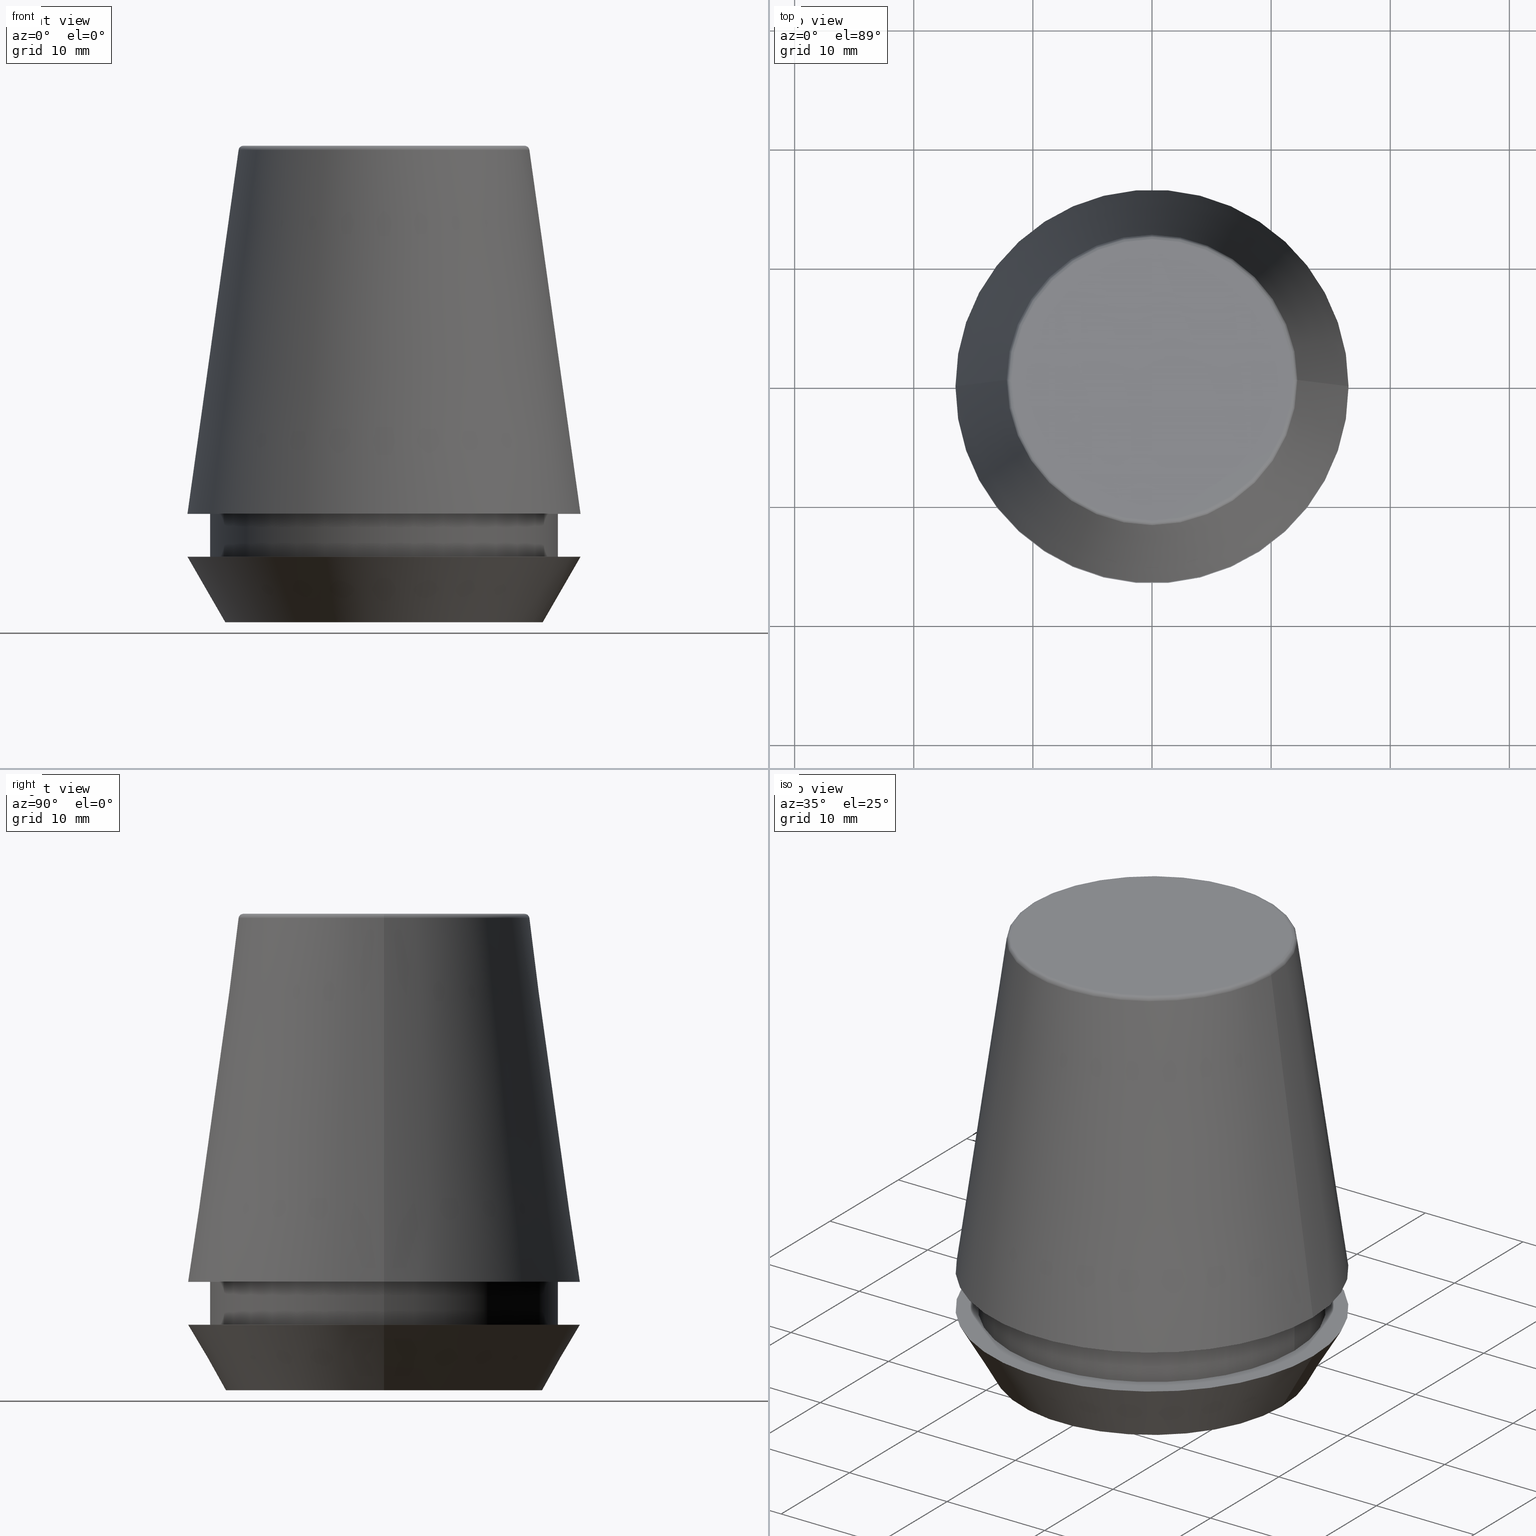
[diagram: canonical four-view strip — front | top / right | iso, engineering-drawing reading convention]
A machine part, canonical four-view strip (front | top / right | iso — engineering-drawing reading convention). The complete STEP part file that produces these views, byte-faithful:
ISO-10303-21;
HEADER;
FILE_DESCRIPTION (( 'STEP AP203' ),
    '1' );
FILE_NAME ('TAP COLLET ER 32G  8.0 X 6.3.STEP',
    '2019-04-09T11:06:26',
    ( '' ),
    ( '' ),
    'SwSTEP 2.0',
    'SolidWorks 2014',
    '' );
FILE_SCHEMA (( 'CONFIG_CONTROL_DESIGN' ));
ENDSEC;

DATA;
#1 = EDGE_CURVE ( 'NONE', #123, #70, #239, .T. ) ;
#2 = VERTEX_POINT ( 'NONE', #189 ) ;
#3 = AXIS2_PLACEMENT_3D ( 'NONE', #117, #236, #336 ) ;
#4 = DIRECTION ( 'NONE',  ( 0.0000000000000000000, -0.0000000000000000000, 1.000000000000000000 ) ) ;
#5 = AXIS2_PLACEMENT_3D ( 'NONE', #28, #350, #193 ) ;
#6 = ORIENTED_EDGE ( 'NONE', *, *, #182, .T. ) ;
#7 = APPROVAL_ROLE ( '' ) ;
#8 = CIRCLE ( 'NONE', #277, 16.50032537154048700 ) ;
#9 = ORIENTED_EDGE ( 'NONE', *, *, #169, .T. ) ;
#10 = APPROVAL_DATE_TIME ( #208, #370 ) ;
#11 = ORIENTED_EDGE ( 'NONE', *, *, #141, .T. ) ;
#12 = CARTESIAN_POINT ( 'NONE',  ( 13.32457351945710200, 0.0000000000000000000, 0.0000000000000000000 ) ) ;
#13 = ORIENTED_EDGE ( 'NONE', *, *, #24, .T. ) ;
#14 = PRODUCT_DEFINITION ( 'UNKNOWN', '', #97, #343 ) ;
#15 = TOROIDAL_SURFACE ( 'NONE', #104, 11.80989888411031400, 0.4000000000000026900 ) ;
#16 = MECHANICAL_CONTEXT ( 'NONE', #174, 'mechanical' ) ;
#17 = PERSON_AND_ORGANIZATION_ROLE ( 'creator' ) ;
#18 = AXIS2_PLACEMENT_3D ( 'NONE', #99, #285, #249 ) ;
#19 = ADVANCED_FACE ( 'NONE', ( #296, #103 ), #48, .F. ) ;
#20 = VERTEX_POINT ( 'NONE', #53 ) ;
#21 = EDGE_CURVE ( 'NONE', #70, #123, #358, .T. ) ;
#22 = DIRECTION ( 'NONE',  ( -0.0000000000000000000, -0.0000000000000000000, 1.000000000000000000 ) ) ;
#23 = APPLICATION_PROTOCOL_DEFINITION ( 'international standard', 'config_control_design', 1994, #174 ) ;
#24 = EDGE_CURVE ( 'NONE', #338, #244, #8, .T. ) ;
#25 = ORIENTED_EDGE ( 'NONE', *, *, #304, .T. ) ;
#26 = ORIENTED_EDGE ( 'NONE', *, *, #129, .T. ) ;
#27 = ORIENTED_EDGE ( 'NONE', *, *, #148, .T. ) ;
#28 = CARTESIAN_POINT ( 'NONE',  ( 0.0000000000000000000, 0.0000000000000000000, 0.0000000000000000000 ) ) ;
#29 = CC_DESIGN_PERSON_AND_ORGANIZATION_ASSIGNMENT ( #324, #341, ( #82 ) ) ;
#30 = DATE_AND_TIME ( #252, #73 ) ;
#31 = EDGE_CURVE ( 'NONE', #331, #323, #139, .T. ) ;
#32 = CARTESIAN_POINT ( 'NONE',  ( -12.20600611160694300, 0.0000000000000000000, 39.65566924038402900 ) ) ;
#33 = DIRECTION ( 'NONE',  ( 1.000000000000000000, 0.0000000000000000000, 0.0000000000000000000 ) ) ;
#34 = EDGE_LOOP ( 'NONE', ( #159, #85, #238, #11 ) ) ;
#35 = CARTESIAN_POINT ( 'NONE',  ( -16.50032537154048700, 0.0000000000000000000, 9.099999999999997900 ) ) ;
#36 = CARTESIAN_POINT ( 'NONE',  ( 0.0000000000000000000, 0.0000000000000000000, 40.00000000000000700 ) ) ;
#37 = AXIS2_PLACEMENT_3D ( 'NONE', #284, #300, #114 ) ;
#38 = LOCAL_TIME ( 16, 36, 26.00000000000000000, #207 ) ;
#39 = CARTESIAN_POINT ( 'NONE',  ( 0.0000000000000000000, 0.0000000000000000000, 0.0000000000000000000 ) ) ;
#40 = VECTOR ( 'NONE', #87, 1000.000000000000000 ) ;
#41 = SECURITY_CLASSIFICATION_LEVEL ( 'unclassified' ) ;
#42 = DIRECTION ( 'NONE',  ( -0.0000000000000000000, -0.0000000000000000000, 1.000000000000000000 ) ) ;
#43 = TOROIDAL_SURFACE ( 'NONE', #321, 11.80989888411031400, 0.4000000000000026900 ) ;
#44 =( GEOMETRIC_REPRESENTATION_CONTEXT ( 3 ) GLOBAL_UNCERTAINTY_ASSIGNED_CONTEXT ( ( #275 ) ) GLOBAL_UNIT_ASSIGNED_CONTEXT ( ( #81, #245, #330 ) ) REPRESENTATION_CONTEXT ( 'NONE', 'WORKASPACE' ) );
#45 = ORGANIZATION ( 'UNSPECIFIED', 'UNSPECIFIED', '' ) ;
#46 = EDGE_CURVE ( 'NONE', #2, #106, #253, .T. ) ;
#47 = EDGE_LOOP ( 'NONE', ( #72, #372, #143, #78 ) ) ;
#48 = PLANE ( 'NONE',  #298 ) ;
#49 = FACE_OUTER_BOUND ( 'NONE', #34, .T. ) ;
#50 = CARTESIAN_POINT ( 'NONE',  ( 0.0000000000000000000, 0.0000000000000000000, 101.8074564848000400 ) ) ;
#51 = PLANE ( 'NONE',  #348 ) ;
#52 = DIRECTION ( 'NONE',  ( 0.1391731009600586900, 1.704378926181473100E-017, -0.9902680687415712500 ) ) ;
#53 = CARTESIAN_POINT ( 'NONE',  ( 11.80989888411031400, 0.0000000000000000000, 40.00000000000000700 ) ) ;
#54 = CARTESIAN_POINT ( 'NONE',  ( -11.80989888411031400, 1.446295486667959300E-015, 39.60000000000000100 ) ) ;
#55 = AXIS2_PLACEMENT_3D ( 'NONE', #39, #201, #121 ) ;
#56 = DIRECTION ( 'NONE',  ( -0.0000000000000000000, -0.0000000000000000000, 1.000000000000000000 ) ) ;
#57 = FACE_OUTER_BOUND ( 'NONE', #187, .T. ) ;
#58 = DIRECTION ( 'NONE',  ( 1.000000000000000000, 0.0000000000000000000, 0.0000000000000000000 ) ) ;
#59 = PERSON_AND_ORGANIZATION ( #352, #45 ) ;
#60 = CARTESIAN_POINT ( 'NONE',  ( 0.0000000000000000000, 0.0000000000000000000, 9.099999999999997900 ) ) ;
#61 = DIRECTION ( 'NONE',  ( 1.000000000000000000, 0.0000000000000000000, 0.0000000000000000000 ) ) ;
#62 = AXIS2_PLACEMENT_3D ( 'NONE', #36, #173, #61 ) ;
#63 = ORIENTED_EDGE ( 'NONE', *, *, #202, .T. ) ;
#64 = ORIENTED_EDGE ( 'NONE', *, *, #31, .T. ) ;
#65 = SHAPE_DEFINITION_REPRESENTATION ( #156, #93 ) ;
#66 = DATE_TIME_ROLE ( 'classification_date' ) ;
#67 = AXIS2_PLACEMENT_3D ( 'NONE', #163, #110, #342 ) ;
#68 = LINE ( 'NONE', #232, #76 ) ;
#69 = PERSON_AND_ORGANIZATION ( #352, #45 ) ;
#70 = VERTEX_POINT ( 'NONE', #365 ) ;
#71 = AXIS2_PLACEMENT_3D ( 'NONE', #180, #42, #171 ) ;
#72 = ORIENTED_EDGE ( 'NONE', *, *, #133, .T. ) ;
#73 = LOCAL_TIME ( 16, 36, 26.00000000000000000, #367 ) ;
#74 = LINE ( 'NONE', #134, #40 ) ;
#75 = CARTESIAN_POINT ( 'NONE',  ( -11.80989888411031400, 1.470550059081603400E-015, 40.00000000000000700 ) ) ;
#76 = VECTOR ( 'NONE', #52, 1000.000000000000000 ) ;
#77 = CARTESIAN_POINT ( 'NONE',  ( 14.60000000000000000, 0.0000000000000000000, 9.099999999999997900 ) ) ;
#78 = ORIENTED_EDGE ( 'NONE', *, *, #363, .F. ) ;
#79 = EDGE_CURVE ( 'NONE', #323, #244, #74, .T. ) ;
#80 = DIRECTION ( 'NONE',  ( -0.0000000000000000000, -0.0000000000000000000, 1.000000000000000000 ) ) ;
#81 =( LENGTH_UNIT ( ) NAMED_UNIT ( * ) SI_UNIT ( .MILLI., .METRE. ) );
#82 = PRODUCT ( 'TAP COLLET ER 32G  8.0 X 6.3', 'TAP COLLET ER 32G  8.0 X 6.3', '', ( #16 ) ) ;
#83 = CIRCLE ( 'NONE', #5, 13.32457351945710200 ) ;
#84 = PLANE ( 'NONE',  #37 ) ;
#85 = ORIENTED_EDGE ( 'NONE', *, *, #182, .F. ) ;
#86 = EDGE_LOOP ( 'NONE', ( #283, #25, #339, #384 ) ) ;
#87 = DIRECTION ( 'NONE',  ( -0.1391731009600586900, 0.0000000000000000000, -0.9902680687415712500 ) ) ;
#88 = ADVANCED_FACE ( 'NONE', ( #262 ), #84, .F. ) ;
#89 = CARTESIAN_POINT ( 'NONE',  ( 0.0000000000000000000, 0.0000000000000000000, 0.0000000000000000000 ) ) ;
#90 = DIRECTION ( 'NONE',  ( 0.4999999999999947300, 0.0000000000000000000, 0.8660254037844418200 ) ) ;
#91 = ORIENTED_EDGE ( 'NONE', *, *, #1, .T. ) ;
#92 = CARTESIAN_POINT ( 'NONE',  ( 13.32457351945710200, 0.0000000000000000000, 0.0000000000000000000 ) ) ;
#93 = ADVANCED_BREP_SHAPE_REPRESENTATION ( 'TAP COLLET ER 32G  8.0 X 6.3', ( #183, #55 ), #44 ) ;
#94 = APPROVAL_STATUS ( 'not_yet_approved' ) ;
#95 = LINE ( 'NONE', #144, #378 ) ;
#96 = ORIENTED_EDGE ( 'NONE', *, *, #165, .F. ) ;
#97 = PRODUCT_DEFINITION_FORMATION_WITH_SPECIFIED_SOURCE ( 'ANY', '', #82, .NOT_KNOWN. ) ;
#98 = ORIENTED_EDGE ( 'NONE', *, *, #46, .T. ) ;
#99 = CARTESIAN_POINT ( 'NONE',  ( 0.0000000000000000000, 0.0000000000000000000, 5.500000000000005300 ) ) ;
#100 = LINE ( 'NONE', #364, #212 ) ;
#101 = CC_DESIGN_DATE_AND_TIME_ASSIGNMENT ( #318, #122, ( #14 ) ) ;
#102 = FACE_OUTER_BOUND ( 'NONE', #328, .T. ) ;
#103 = FACE_OUTER_BOUND ( 'NONE', #179, .T. ) ;
#104 = AXIS2_PLACEMENT_3D ( 'NONE', #237, #196, #273 ) ;
#105 = DIRECTION ( 'NONE',  ( -0.0000000000000000000, -0.0000000000000000000, 1.000000000000000000 ) ) ;
#106 = VERTEX_POINT ( 'NONE', #385 ) ;
#107 = AXIS2_PLACEMENT_3D ( 'NONE', #60, #149, #172 ) ;
#108 = DIRECTION ( 'NONE',  ( -0.0000000000000000000, -0.0000000000000000000, 1.000000000000000000 ) ) ;
#109 = DIRECTION ( 'NONE',  ( -0.0000000000000000000, -0.0000000000000000000, 1.000000000000000000 ) ) ;
#110 = DIRECTION ( 'NONE',  ( -0.0000000000000000000, -0.0000000000000000000, 1.000000000000000000 ) ) ;
#111 = AXIS2_PLACEMENT_3D ( 'NONE', #50, #109, #235 ) ;
#112 = CARTESIAN_POINT ( 'NONE',  ( 0.0000000000000000000, 0.0000000000000000000, 5.500000000000005300 ) ) ;
#113 = AXIS2_PLACEMENT_3D ( 'NONE', #292, #227, #188 ) ;
#114 = DIRECTION ( 'NONE',  ( -1.000000000000000000, 0.0000000000000000000, -0.0000000000000000000 ) ) ;
#115 = DIRECTION ( 'NONE',  ( 0.0000000000000000000, -0.0000000000000000000, 1.000000000000000000 ) ) ;
#116 = DIRECTION ( 'NONE',  ( -0.4999999999999947300, 6.123233995736700700E-017, 0.8660254037844418200 ) ) ;
#117 = CARTESIAN_POINT ( 'NONE',  ( 0.0000000000000000000, 0.0000000000000000000, 9.099999999999997900 ) ) ;
#118 = DATE_AND_TIME ( #289, #38 ) ;
#119 = LINE ( 'NONE', #199, #319 ) ;
#120 = AXIS2_PLACEMENT_3D ( 'NONE', #54, #200, #376 ) ;
#121 = DIRECTION ( 'NONE',  ( 1.000000000000000000, 0.0000000000000000000, 0.0000000000000000000 ) ) ;
#122 = DATE_TIME_ROLE ( 'creation_date' ) ;
#123 = VERTEX_POINT ( 'NONE', #335 ) ;
#124 = EDGE_CURVE ( 'NONE', #223, #288, #138, .T. ) ;
#125 = APPLICATION_PROTOCOL_DEFINITION ( 'international standard', 'config_control_design', 1994, #310 ) ;
#126 = DIRECTION ( 'NONE',  ( 1.000000000000000000, 0.0000000000000000000, 0.0000000000000000000 ) ) ;
#127 = PERSON_AND_ORGANIZATION ( #352, #45 ) ;
#128 = DIRECTION ( 'NONE',  ( -0.0000000000000000000, -0.0000000000000000000, 1.000000000000000000 ) ) ;
#129 = EDGE_CURVE ( 'NONE', #106, #2, #222, .T. ) ;
#130 = APPROVAL_PERSON_ORGANIZATION ( #306, #250, #152 ) ;
#131 = APPROVAL_DATE_TIME ( #30, #255 ) ;
#132 = CIRCLE ( 'NONE', #71, 11.80989888411031400 ) ;
#133 = EDGE_CURVE ( 'NONE', #379, #303, #214, .T. ) ;
#134 = CARTESIAN_POINT ( 'NONE',  ( -16.50032537154048700, 0.0000000000000000000, 9.099999999999997900 ) ) ;
#135 = EDGE_LOOP ( 'NONE', ( #145, #27, #13, #217 ) ) ;
#136 = PRODUCT_RELATED_PRODUCT_CATEGORY ( 'detail', '', ( #82 ) ) ;
#137 = CYLINDRICAL_SURFACE ( 'NONE', #111, 14.60000000000000000 ) ;
#138 = CIRCLE ( 'NONE', #243, 14.60000000000000000 ) ;
#139 = CIRCLE ( 'NONE', #251, 12.20600611160694300 ) ;
#140 = DIRECTION ( 'NONE',  ( -1.000000000000000000, 0.0000000000000000000, -0.0000000000000000000 ) ) ;
#141 = EDGE_CURVE ( 'NONE', #244, #338, #230, .T. ) ;
#142 = CARTESIAN_POINT ( 'NONE',  ( 0.0000000000000000000, 0.0000000000000000000, 39.65566924038402900 ) ) ;
#143 = ORIENTED_EDGE ( 'NONE', *, *, #46, .F. ) ;
#144 = CARTESIAN_POINT ( 'NONE',  ( -13.32457351945710200, 1.631789631060672300E-015, 0.0000000000000000000 ) ) ;
#145 = ORIENTED_EDGE ( 'NONE', *, *, #31, .F. ) ;
#146 = CARTESIAN_POINT ( 'NONE',  ( 0.0000000000000000000, 0.0000000000000000000, 5.500000000000005300 ) ) ;
#147 = CARTESIAN_POINT ( 'NONE',  ( 11.80989888411031400, 0.0000000000000000000, 39.60000000000000100 ) ) ;
#148 = EDGE_CURVE ( 'NONE', #331, #338, #68, .T. ) ;
#149 = DIRECTION ( 'NONE',  ( 0.0000000000000000000, 0.0000000000000000000, -1.000000000000000000 ) ) ;
#150 = LOCAL_TIME ( 16, 36, 26.00000000000000000, #231 ) ;
#151 = ORIENTED_EDGE ( 'NONE', *, *, #124, .T. ) ;
#152 = APPROVAL_ROLE ( '' ) ;
#153 = CIRCLE ( 'NONE', #186, 0.4000000000000045200 ) ;
#154 = ORIENTED_EDGE ( 'NONE', *, *, #158, .T. ) ;
#155 = ORIENTED_EDGE ( 'NONE', *, *, #133, .F. ) ;
#156 = PRODUCT_DEFINITION_SHAPE ( 'NONE', 'NONE',  #14 ) ;
#157 = FACE_OUTER_BOUND ( 'NONE', #162, .T. ) ;
#158 = EDGE_CURVE ( 'NONE', #70, #288, #119, .T. ) ;
#159 = ORIENTED_EDGE ( 'NONE', *, *, #148, .F. ) ;
#160 = ORIENTED_EDGE ( 'NONE', *, *, #129, .F. ) ;
#161 = CARTESIAN_POINT ( 'NONE',  ( 0.0000000000000000000, 16.50032537154048700, 9.099999999999999600 ) ) ;
#162 = EDGE_LOOP ( 'NONE', ( #203, #91, #154, #290 ) ) ;
#163 = CARTESIAN_POINT ( 'NONE',  ( 0.0000000000000000000, 0.0000000000000000000, 9.099999999999997900 ) ) ;
#164 = AXIS2_PLACEMENT_3D ( 'NONE', #267, #166, #302 ) ;
#165 = EDGE_CURVE ( 'NONE', #20, #225, #132, .T. ) ;
#166 = DIRECTION ( 'NONE',  ( -0.0000000000000000000, -0.0000000000000000000, 1.000000000000000000 ) ) ;
#167 = ADVANCED_FACE ( 'NONE', ( #355 ), #312, .T. ) ;
#168 = CARTESIAN_POINT ( 'NONE',  ( 0.0000000000000000000, 0.0000000000000000000, 39.60000000000000100 ) ) ;
#169 = EDGE_CURVE ( 'NONE', #331, #20, #153, .T. ) ;
#170 = CALENDAR_DATE ( 2019, 9, 4 ) ;
#171 = DIRECTION ( 'NONE',  ( 1.000000000000000000, 0.0000000000000000000, 0.0000000000000000000 ) ) ;
#172 = DIRECTION ( 'NONE',  ( -1.000000000000000000, 0.0000000000000000000, 0.0000000000000000000 ) ) ;
#173 = DIRECTION ( 'NONE',  ( -0.0000000000000000000, -0.0000000000000000000, 1.000000000000000000 ) ) ;
#174 = APPLICATION_CONTEXT ( 'configuration controlled 3d designs of mechanical parts and assemblies' ) ;
#175 = PERSON_AND_ORGANIZATION_ROLE ( 'design_supplier' ) ;
#176 = CLOSED_SHELL ( 'NONE', ( #325, #167, #386, #347, #88, #320, #219, #19, #281, #264, #315, #349 ) ) ;
#177 = EDGE_CURVE ( 'NONE', #303, #106, #95, .T. ) ;
#178 = LOCAL_TIME ( 16, 36, 26.00000000000000000, #329 ) ;
#179 = EDGE_LOOP ( 'NONE', ( #98, #26 ) ) ;
#180 = CARTESIAN_POINT ( 'NONE',  ( 0.0000000000000000000, 0.0000000000000000000, 40.00000000000000700 ) ) ;
#181 = DIRECTION ( 'NONE',  ( 1.000000000000000000, 0.0000000000000000000, 0.0000000000000000000 ) ) ;
#182 = EDGE_CURVE ( 'NONE', #323, #331, #366, .T. ) ;
#183 = MANIFOLD_SOLID_BREP ( 'Revolve1', #176 ) ;
#184 = AXIS2_PLACEMENT_3D ( 'NONE', #354, #218, #224 ) ;
#185 = VECTOR ( 'NONE', #90, 999.9999999999998900 ) ;
#186 = AXIS2_PLACEMENT_3D ( 'NONE', #147, #270, #369 ) ;
#187 = EDGE_LOOP ( 'NONE', ( #64, #260, #96, #216 ) ) ;
#188 = DIRECTION ( 'NONE',  ( -1.000000000000000000, 0.0000000000000000000, 0.0000000000000000000 ) ) ;
#189 = CARTESIAN_POINT ( 'NONE',  ( 16.50000000000000000, 0.0000000000000000000, 5.500000000000005300 ) ) ;
#190 = ORIENTED_EDGE ( 'NONE', *, *, #21, .F. ) ;
#191 = DIRECTION ( 'NONE',  ( -0.0000000000000000000, -0.0000000000000000000, 1.000000000000000000 ) ) ;
#192 = DIRECTION ( 'NONE',  ( -0.0000000000000000000, -0.0000000000000000000, 1.000000000000000000 ) ) ;
#193 = DIRECTION ( 'NONE',  ( 1.000000000000000000, 0.0000000000000000000, 0.0000000000000000000 ) ) ;
#194 = ORIENTED_EDGE ( 'NONE', *, *, #165, .T. ) ;
#195 = ORIENTED_EDGE ( 'NONE', *, *, #141, .F. ) ;
#196 = DIRECTION ( 'NONE',  ( -0.0000000000000000000, -0.0000000000000000000, 1.000000000000000000 ) ) ;
#197 = CARTESIAN_POINT ( 'NONE',  ( 16.50032537154048700, 2.020707065114692300E-015, 9.099999999999997900 ) ) ;
#198 = CC_DESIGN_APPROVAL ( #250, ( #97 ) ) ;
#199 = CARTESIAN_POINT ( 'NONE',  ( 14.60000000000000000, 0.0000000000000000000, 101.8074564848000400 ) ) ;
#200 = DIRECTION ( 'NONE',  ( 1.224646799147353200E-016, 1.000000000000000000, 0.0000000000000000000 ) ) ;
#201 = DIRECTION ( 'NONE',  ( 0.0000000000000000000, 0.0000000000000000000, 1.000000000000000000 ) ) ;
#202 = EDGE_CURVE ( 'NONE', #288, #223, #371, .T. ) ;
#203 = ORIENTED_EDGE ( 'NONE', *, *, #304, .F. ) ;
#204 = CIRCLE ( 'NONE', #62, 11.80989888411031400 ) ;
#205 = PERSON_AND_ORGANIZATION_ROLE ( 'classification_officer' ) ;
#206 = CC_DESIGN_PERSON_AND_ORGANIZATION_ASSIGNMENT ( #59, #17, ( #97 ) ) ;
#207 = COORDINATED_UNIVERSAL_TIME_OFFSET ( 5, 30, .AHEAD. ) ;
#208 = DATE_AND_TIME ( #257, #178 ) ;
#209 = ORIENTED_EDGE ( 'NONE', *, *, #1, .F. ) ;
#210 = SECURITY_CLASSIFICATION ( '', '', #41 ) ;
#211 = DIRECTION ( 'NONE',  ( 1.000000000000000000, 0.0000000000000000000, 0.0000000000000000000 ) ) ;
#212 = VECTOR ( 'NONE', #108, 1000.000000000000000 ) ;
#213 = CARTESIAN_POINT ( 'NONE',  ( 0.0000000000000000000, 0.0000000000000000000, 9.099999999999997900 ) ) ;
#214 = CIRCLE ( 'NONE', #164, 13.32457351945710200 ) ;
#215 = DATE_AND_TIME ( #170, #346 ) ;
#216 = ORIENTED_EDGE ( 'NONE', *, *, #169, .F. ) ;
#217 = ORIENTED_EDGE ( 'NONE', *, *, #79, .F. ) ;
#218 = DIRECTION ( 'NONE',  ( -0.0000000000000000000, -0.0000000000000000000, 1.000000000000000000 ) ) ;
#219 = ADVANCED_FACE ( 'NONE', ( #102 ), #333, .T. ) ;
#220 = DIRECTION ( 'NONE',  ( 1.000000000000000000, 0.0000000000000000000, 0.0000000000000000000 ) ) ;
#221 = AXIS2_PLACEMENT_3D ( 'NONE', #146, #105, #211 ) ;
#222 = CIRCLE ( 'NONE', #221, 16.50000000000000000 ) ;
#223 = VERTEX_POINT ( 'NONE', #382 ) ;
#224 = DIRECTION ( 'NONE',  ( 1.000000000000000000, 0.0000000000000000000, 0.0000000000000000000 ) ) ;
#225 = VERTEX_POINT ( 'NONE', #75 ) ;
#226 = DIRECTION ( 'NONE',  ( -0.0000000000000000000, -0.0000000000000000000, 1.000000000000000000 ) ) ;
#227 = DIRECTION ( 'NONE',  ( 0.0000000000000000000, 0.0000000000000000000, -1.000000000000000000 ) ) ;
#228 = CC_DESIGN_DATE_AND_TIME_ASSIGNMENT ( #215, #66, ( #210 ) ) ;
#229 = CYLINDRICAL_SURFACE ( 'NONE', #301, 14.60000000000000000 ) ;
#230 = CIRCLE ( 'NONE', #67, 16.50032537154048700 ) ;
#231 = COORDINATED_UNIVERSAL_TIME_OFFSET ( 5, 30, .AHEAD. ) ;
#232 = CARTESIAN_POINT ( 'NONE',  ( 16.50032537154048700, 2.020707065114692300E-015, 9.099999999999997900 ) ) ;
#233 = ORIENTED_EDGE ( 'NONE', *, *, #359, .F. ) ;
#234 = CC_DESIGN_PERSON_AND_ORGANIZATION_ASSIGNMENT ( #334, #205, ( #210 ) ) ;
#235 = DIRECTION ( 'NONE',  ( 1.000000000000000000, 0.0000000000000000000, 0.0000000000000000000 ) ) ;
#236 = DIRECTION ( 'NONE',  ( -0.0000000000000000000, -0.0000000000000000000, 1.000000000000000000 ) ) ;
#237 = CARTESIAN_POINT ( 'NONE',  ( 0.0000000000000000000, 0.0000000000000000000, 39.60000000000000100 ) ) ;
#238 = ORIENTED_EDGE ( 'NONE', *, *, #79, .T. ) ;
#239 = CIRCLE ( 'NONE', #377, 14.60000000000000000 ) ;
#240 = APPROVAL_ROLE ( '' ) ;
#241 = FACE_OUTER_BOUND ( 'NONE', #383, .T. ) ;
#242 = APPROVAL_STATUS ( 'not_yet_approved' ) ;
#243 = AXIS2_PLACEMENT_3D ( 'NONE', #282, #276, #291 ) ;
#244 = VERTEX_POINT ( 'NONE', #35 ) ;
#245 =( NAMED_UNIT ( * ) PLANE_ANGLE_UNIT ( ) SI_UNIT ( $, .RADIAN. ) );
#246 = PERSON_AND_ORGANIZATION ( #352, #45 ) ;
#247 = ORIENTED_EDGE ( 'NONE', *, *, #263, .T. ) ;
#248 = EDGE_LOOP ( 'NONE', ( #194, #314 ) ) ;
#249 = DIRECTION ( 'NONE',  ( 1.000000000000000000, 0.0000000000000000000, 0.0000000000000000000 ) ) ;
#250 = APPROVAL ( #381, 'UNSPECIFIED' ) ;
#251 = AXIS2_PLACEMENT_3D ( 'NONE', #351, #128, #317 ) ;
#252 = CALENDAR_DATE ( 2019, 9, 4 ) ;
#253 = CIRCLE ( 'NONE', #184, 16.50000000000000000 ) ;
#254 = EDGE_LOOP ( 'NONE', ( #190, #209 ) ) ;
#255 = APPROVAL ( #242, 'UNSPECIFIED' ) ;
#256 = AXIS2_PLACEMENT_3D ( 'NONE', #142, #192, #126 ) ;
#257 = CALENDAR_DATE ( 2019, 9, 4 ) ;
#258 = EDGE_LOOP ( 'NONE', ( #155, #361 ) ) ;
#259 = CARTESIAN_POINT ( 'NONE',  ( -13.32457351945710200, 1.826228424826902600E-015, 0.0000000000000000000 ) ) ;
#260 = ORIENTED_EDGE ( 'NONE', *, *, #357, .T. ) ;
#261 = DIRECTION ( 'NONE',  ( 0.0000000000000000000, 0.0000000000000000000, -1.000000000000000000 ) ) ;
#262 = FACE_OUTER_BOUND ( 'NONE', #248, .T. ) ;
#263 = EDGE_CURVE ( 'NONE', #303, #379, #83, .T. ) ;
#264 = ADVANCED_FACE ( 'NONE', ( #241, #295 ), #337, .F. ) ;
#265 = FACE_OUTER_BOUND ( 'NONE', #322, .T. ) ;
#266 = CC_DESIGN_SECURITY_CLASSIFICATION ( #210, ( #97 ) ) ;
#267 = CARTESIAN_POINT ( 'NONE',  ( 0.0000000000000000000, 0.0000000000000000000, 0.0000000000000000000 ) ) ;
#268 = CARTESIAN_POINT ( 'NONE',  ( 12.20600611160694300, 1.757755848304969800E-015, 39.65566924038402900 ) ) ;
#269 = ORIENTED_EDGE ( 'NONE', *, *, #177, .F. ) ;
#270 = DIRECTION ( 'NONE',  ( 0.0000000000000000000, -1.000000000000000000, 0.0000000000000000000 ) ) ;
#271 = DIRECTION ( 'NONE',  ( 1.000000000000000000, 0.0000000000000000000, 0.0000000000000000000 ) ) ;
#272 = DIRECTION ( 'NONE',  ( -0.0000000000000000000, -0.0000000000000000000, 1.000000000000000000 ) ) ;
#273 = DIRECTION ( 'NONE',  ( 1.000000000000000000, 0.0000000000000000000, 0.0000000000000000000 ) ) ;
#274 = CC_DESIGN_PERSON_AND_ORGANIZATION_ASSIGNMENT ( #313, #175, ( #97 ) ) ;
#275 = UNCERTAINTY_MEASURE_WITH_UNIT (LENGTH_MEASURE( 1.000000000000000100E-005 ), #81, 'distance_accuracy_value', 'NONE');
#276 = DIRECTION ( 'NONE',  ( -0.0000000000000000000, -0.0000000000000000000, 1.000000000000000000 ) ) ;
#277 = AXIS2_PLACEMENT_3D ( 'NONE', #213, #22, #181 ) ;
#278 = ORIENTED_EDGE ( 'NONE', *, *, #357, .F. ) ;
#279 = FACE_OUTER_BOUND ( 'NONE', #258, .T. ) ;
#280 = CC_DESIGN_APPROVAL ( #255, ( #210 ) ) ;
#281 = ADVANCED_FACE ( 'NONE', ( #157 ), #137, .T. ) ;
#282 = CARTESIAN_POINT ( 'NONE',  ( 0.0000000000000000000, 0.0000000000000000000, 9.099999999999997900 ) ) ;
#283 = ORIENTED_EDGE ( 'NONE', *, *, #21, .T. ) ;
#284 = CARTESIAN_POINT ( 'NONE',  ( 0.0000000000000000000, 11.80989888411031400, 40.00000000000000700 ) ) ;
#285 = DIRECTION ( 'NONE',  ( -0.0000000000000000000, -0.0000000000000000000, 1.000000000000000000 ) ) ;
#286 = CALENDAR_DATE ( 2019, 9, 4 ) ;
#287 = DIRECTION ( 'NONE',  ( 1.000000000000000000, 0.0000000000000000000, 0.0000000000000000000 ) ) ;
#288 = VERTEX_POINT ( 'NONE', #77 ) ;
#289 = CALENDAR_DATE ( 2019, 9, 4 ) ;
#290 = ORIENTED_EDGE ( 'NONE', *, *, #124, .F. ) ;
#291 = DIRECTION ( 'NONE',  ( 1.000000000000000000, 0.0000000000000000000, 0.0000000000000000000 ) ) ;
#292 = CARTESIAN_POINT ( 'NONE',  ( 0.0000000000000000000, 0.0000000000000000000, 9.099999999999997900 ) ) ;
#293 = APPROVAL_DATE_TIME ( #118, #250 ) ;
#294 = CC_DESIGN_PERSON_AND_ORGANIZATION_ASSIGNMENT ( #127, #344, ( #14 ) ) ;
#295 = FACE_BOUND ( 'NONE', #307, .T. ) ;
#296 = FACE_BOUND ( 'NONE', #254, .T. ) ;
#297 = CIRCLE ( 'NONE', #120, 0.4000000000000028000 ) ;
#298 = AXIS2_PLACEMENT_3D ( 'NONE', #308, #261, #140 ) ;
#299 = DIRECTION ( 'NONE',  ( -0.0000000000000000000, -0.0000000000000000000, 1.000000000000000000 ) ) ;
#300 = DIRECTION ( 'NONE',  ( 0.0000000000000000000, 0.0000000000000000000, -1.000000000000000000 ) ) ;
#301 = AXIS2_PLACEMENT_3D ( 'NONE', #309, #299, #58 ) ;
#302 = DIRECTION ( 'NONE',  ( 1.000000000000000000, 0.0000000000000000000, 0.0000000000000000000 ) ) ;
#303 = VERTEX_POINT ( 'NONE', #259 ) ;
#304 = EDGE_CURVE ( 'NONE', #123, #223, #100, .T. ) ;
#305 = DIRECTION ( 'NONE',  ( 1.000000000000000000, 0.0000000000000000000, 0.0000000000000000000 ) ) ;
#306 = PERSON_AND_ORGANIZATION ( #352, #45 ) ;
#307 = EDGE_LOOP ( 'NONE', ( #63, #151 ) ) ;
#308 = CARTESIAN_POINT ( 'NONE',  ( 0.0000000000000000000, 16.50000000000000000, 5.500000000000002700 ) ) ;
#309 = CARTESIAN_POINT ( 'NONE',  ( 0.0000000000000000000, 0.0000000000000000000, 101.8074564848000400 ) ) ;
#310 = APPLICATION_CONTEXT ( 'configuration controlled 3d designs of mechanical parts and assemblies' ) ;
#311 = CONICAL_SURFACE ( 'NONE', #340, 13.32457351945710200, 0.5235987755982927100 ) ;
#312 = CONICAL_SURFACE ( 'NONE', #107, 16.50032537154048700, 0.1396263401595395900 ) ;
#313 = PERSON_AND_ORGANIZATION ( #352, #45 ) ;
#314 = ORIENTED_EDGE ( 'NONE', *, *, #359, .T. ) ;
#315 = ADVANCED_FACE ( 'NONE', ( #49 ), #353, .T. ) ;
#316 = ORIENTED_EDGE ( 'NONE', *, *, #24, .F. ) ;
#317 = DIRECTION ( 'NONE',  ( 1.000000000000000000, 0.0000000000000000000, 0.0000000000000000000 ) ) ;
#318 = DATE_AND_TIME ( #286, #150 ) ;
#319 = VECTOR ( 'NONE', #226, 1000.000000000000000 ) ;
#320 = ADVANCED_FACE ( 'NONE', ( #279 ), #51, .F. ) ;
#321 = AXIS2_PLACEMENT_3D ( 'NONE', #168, #191, #271 ) ;
#322 = EDGE_LOOP ( 'NONE', ( #278, #6, #9, #233 ) ) ;
#323 = VERTEX_POINT ( 'NONE', #32 ) ;
#324 = PERSON_AND_ORGANIZATION ( #352, #45 ) ;
#325 = ADVANCED_FACE ( 'NONE', ( #57 ), #43, .T. ) ;
#326 = APPROVAL_PERSON_ORGANIZATION ( #69, #255, #7 ) ;
#327 = CC_DESIGN_APPROVAL ( #370, ( #14 ) ) ;
#328 = EDGE_LOOP ( 'NONE', ( #269, #247, #374, #160 ) ) ;
#329 = COORDINATED_UNIVERSAL_TIME_OFFSET ( 5, 30, .AHEAD. ) ;
#330 =( NAMED_UNIT ( * ) SI_UNIT ( $, .STERADIAN. ) SOLID_ANGLE_UNIT ( ) );
#331 = VERTEX_POINT ( 'NONE', #268 ) ;
#332 = CARTESIAN_POINT ( 'NONE',  ( 0.0000000000000000000, 0.0000000000000000000, 0.0000000000000000000 ) ) ;
#333 = CONICAL_SURFACE ( 'NONE', #345, 13.32457351945710200, 0.5235987755982927100 ) ;
#334 = PERSON_AND_ORGANIZATION ( #352, #45 ) ;
#335 = CARTESIAN_POINT ( 'NONE',  ( -14.60000000000000000, 1.787984326755135800E-015, 5.500000000000005300 ) ) ;
#336 = DIRECTION ( 'NONE',  ( 1.000000000000000000, 0.0000000000000000000, 0.0000000000000000000 ) ) ;
#337 = PLANE ( 'NONE',  #387 ) ;
#338 = VERTEX_POINT ( 'NONE', #197 ) ;
#339 = ORIENTED_EDGE ( 'NONE', *, *, #202, .F. ) ;
#340 = AXIS2_PLACEMENT_3D ( 'NONE', #373, #56, #33 ) ;
#341 = PERSON_AND_ORGANIZATION_ROLE ( 'design_owner' ) ;
#342 = DIRECTION ( 'NONE',  ( 1.000000000000000000, 0.0000000000000000000, 0.0000000000000000000 ) ) ;
#343 = DESIGN_CONTEXT ( 'detailed design', #310, 'design' ) ;
#344 = PERSON_AND_ORGANIZATION_ROLE ( 'creator' ) ;
#345 = AXIS2_PLACEMENT_3D ( 'NONE', #89, #272, #305 ) ;
#346 = LOCAL_TIME ( 16, 36, 26.00000000000000000, #356 ) ;
#347 = ADVANCED_FACE ( 'NONE', ( #375 ), #311, .T. ) ;
#348 = AXIS2_PLACEMENT_3D ( 'NONE', #332, #115, #362 ) ;
#349 = ADVANCED_FACE ( 'NONE', ( #265 ), #15, .T. ) ;
#350 = DIRECTION ( 'NONE',  ( -0.0000000000000000000, -0.0000000000000000000, 1.000000000000000000 ) ) ;
#351 = CARTESIAN_POINT ( 'NONE',  ( 0.0000000000000000000, 0.0000000000000000000, 39.65566924038402900 ) ) ;
#352 = PERSON ( 'UNSPECIFIED', 'UNSPECIFIED', 'UNSPECIFIED', ('UNSPECIFIED'), ('UNSPECIFIED'), ('UNSPECIFIED') ) ;
#353 = CONICAL_SURFACE ( 'NONE', #113, 16.50032537154048700, 0.1396263401595395900 ) ;
#354 = CARTESIAN_POINT ( 'NONE',  ( 0.0000000000000000000, 0.0000000000000000000, 5.500000000000005300 ) ) ;
#355 = FACE_OUTER_BOUND ( 'NONE', #135, .T. ) ;
#356 = COORDINATED_UNIVERSAL_TIME_OFFSET ( 5, 30, .AHEAD. ) ;
#357 = EDGE_CURVE ( 'NONE', #323, #225, #297, .T. ) ;
#358 = CIRCLE ( 'NONE', #18, 14.60000000000000000 ) ;
#359 = EDGE_CURVE ( 'NONE', #225, #20, #204, .T. ) ;
#360 = APPROVAL_PERSON_ORGANIZATION ( #246, #370, #240 ) ;
#361 = ORIENTED_EDGE ( 'NONE', *, *, #263, .F. ) ;
#362 = DIRECTION ( 'NONE',  ( 1.000000000000000000, 0.0000000000000000000, 0.0000000000000000000 ) ) ;
#363 = EDGE_CURVE ( 'NONE', #379, #2, #380, .T. ) ;
#364 = CARTESIAN_POINT ( 'NONE',  ( -14.60000000000000000, 1.787984326755135800E-015, 101.8074564848000400 ) ) ;
#365 = CARTESIAN_POINT ( 'NONE',  ( 14.60000000000000000, 0.0000000000000000000, 5.500000000000005300 ) ) ;
#366 = CIRCLE ( 'NONE', #256, 12.20600611160694300 ) ;
#367 = COORDINATED_UNIVERSAL_TIME_OFFSET ( 5, 30, .AHEAD. ) ;
#368 = FACE_OUTER_BOUND ( 'NONE', #86, .T. ) ;
#369 = DIRECTION ( 'NONE',  ( 0.0000000000000000000, 0.0000000000000000000, -1.000000000000000000 ) ) ;
#370 = APPROVAL ( #94, 'UNSPECIFIED' ) ;
#371 = CIRCLE ( 'NONE', #3, 14.60000000000000000 ) ;
#372 = ORIENTED_EDGE ( 'NONE', *, *, #177, .T. ) ;
#373 = CARTESIAN_POINT ( 'NONE',  ( 0.0000000000000000000, 0.0000000000000000000, 0.0000000000000000000 ) ) ;
#374 = ORIENTED_EDGE ( 'NONE', *, *, #363, .T. ) ;
#375 = FACE_OUTER_BOUND ( 'NONE', #47, .T. ) ;
#376 = DIRECTION ( 'NONE',  ( -1.000000000000000000, 1.224646799147352500E-016, 0.0000000000000000000 ) ) ;
#377 = AXIS2_PLACEMENT_3D ( 'NONE', #112, #80, #220 ) ;
#378 = VECTOR ( 'NONE', #116, 999.9999999999998900 ) ;
#379 = VERTEX_POINT ( 'NONE', #92 ) ;
#380 = LINE ( 'NONE', #12, #185 ) ;
#381 = APPROVAL_STATUS ( 'not_yet_approved' ) ;
#382 = CARTESIAN_POINT ( 'NONE',  ( -14.60000000000000000, 1.787984326755135800E-015, 9.099999999999997900 ) ) ;
#383 = EDGE_LOOP ( 'NONE', ( #195, #316 ) ) ;
#384 = ORIENTED_EDGE ( 'NONE', *, *, #158, .F. ) ;
#385 = CARTESIAN_POINT ( 'NONE',  ( -16.50000000000000000, 2.020667218593133100E-015, 5.500000000000005300 ) ) ;
#386 = ADVANCED_FACE ( 'NONE', ( #368 ), #229, .T. ) ;
#387 = AXIS2_PLACEMENT_3D ( 'NONE', #161, #4, #287 ) ;
ENDSEC;
END-ISO-10303-21;
